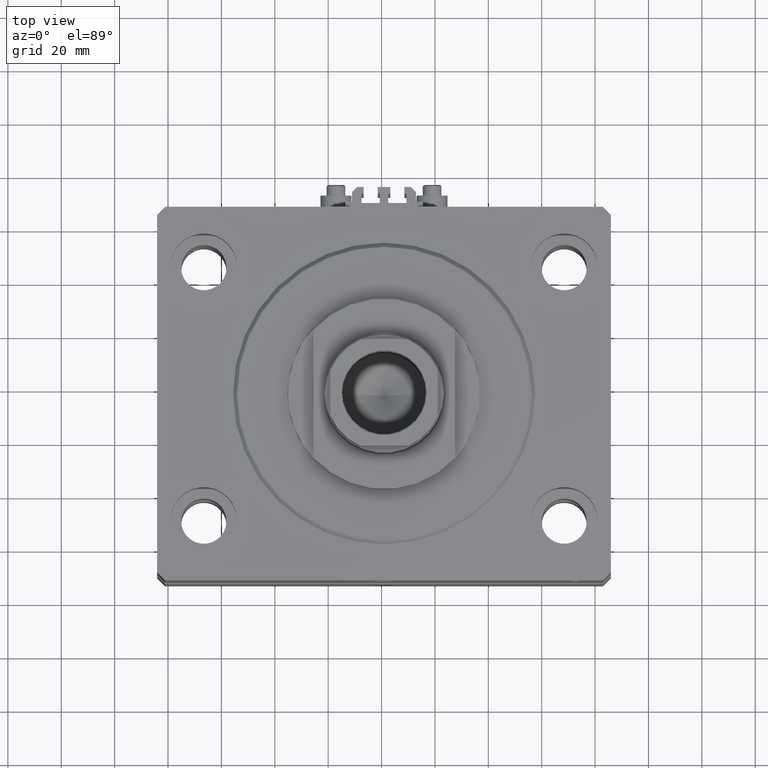
[diagram: clean part render]
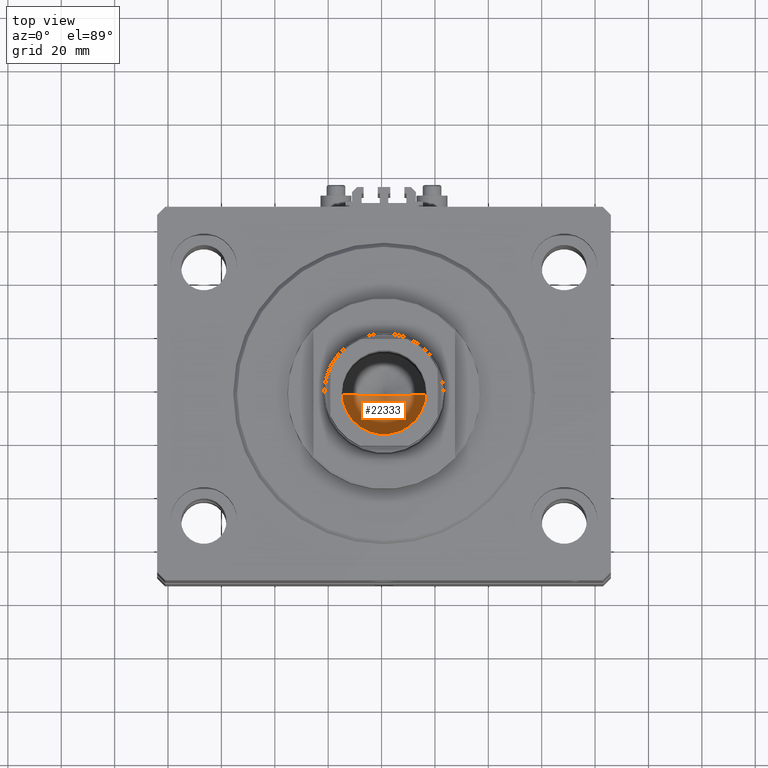
[diagram: same view with one face highlighted and labeled with its STEP entity id]
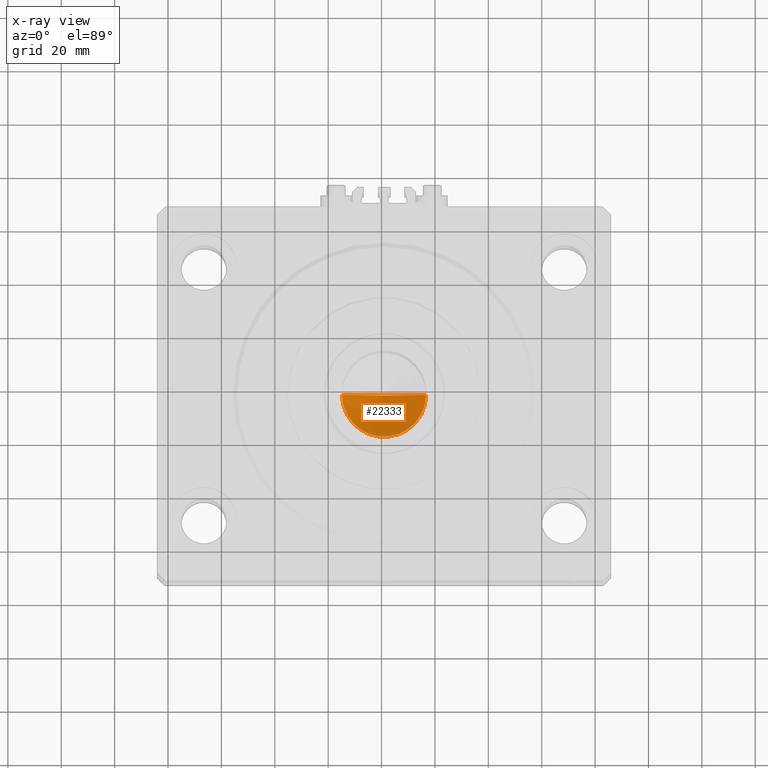
[diagram: x-ray of the same camera — body ghosted, the highlighted face saturated]
A machine part, top view. The second image highlights one B-rep face of the part: STEP entity #22333.
The next image is the same camera in x-ray: the body ghosted, the highlighted face saturated — about 8% of this face is hidden behind the body in this view.
In plain terms, the highlighted conical surface has half-angle 59 deg.
Its self-contained STEP definition (entity closure, byte-faithful):
#2558 = DIRECTION ( 'NONE',  ( -0.000000000000000000, -0.000000000000000000, 1.000000000000000000 ) ) ;
#3856 = DIRECTION ( 'NONE',  ( -0.8571673007021118895, 1.049727191138618079E-16, 0.5150380749100549327 ) ) ;
#3871 = EDGE_LOOP ( 'NONE', ( #7846, #6581, #46668 ) ) ;
#6218 = CONICAL_SURFACE ( 'NONE', #36731, 15.74999999999998934, 1.029744258676653645 ) ;
#6227 = FACE_OUTER_BOUND ( 'NONE', #3871, .T. ) ;
#6581 = ORIENTED_EDGE ( 'NONE', *, *, #48388, .T. ) ;
#6760 = VECTOR ( 'NONE', #3856, 1000.000000000000000 ) ;
#7846 = ORIENTED_EDGE ( 'NONE', *, *, #15342, .F. ) ;
#9653 = EDGE_CURVE ( 'NONE', #30307, #35238, #28606, .T. ) ;
#11919 = CARTESIAN_POINT ( 'NONE',  ( -15.74999999999998934, 1.928818708657080161E-15, 71.00000000000001421 ) ) ;
#15342 = EDGE_CURVE ( 'NONE', #45199, #35238, #39161, .T. ) ;
#18560 = LINE ( 'NONE', #37408, #6760 ) ;
#19825 = DIRECTION ( 'NONE',  ( 0.8571673007021118895, 0.000000000000000000, 0.5150380749100549327 ) ) ;
#20448 = CARTESIAN_POINT ( 'NONE',  ( 0.000000000000000000, 0.000000000000000000, 71.00000000000001421 ) ) ;
#22333 = ADVANCED_FACE ( 'NONE', ( #6227 ), #6218, .F. ) ;
#22414 = VECTOR ( 'NONE', #19825, 1000.000000000000000 ) ;
#25715 = DIRECTION ( 'NONE',  ( -0.000000000000000000, -0.000000000000000000, 1.000000000000000000 ) ) ;
#28295 = CARTESIAN_POINT ( 'NONE',  ( 15.74999999999998934, 0.000000000000000000, 71.00000000000001421 ) ) ;
#28606 = CIRCLE ( 'NONE', #37204, 15.74999999999998934 ) ;
#29249 = CARTESIAN_POINT ( 'NONE',  ( -1.480675244360640996E-14, 0.000000000000000000, 61.53644525031592849 ) ) ;
#30307 = VERTEX_POINT ( 'NONE', #11919 ) ;
#31220 = DIRECTION ( 'NONE',  ( 1.000000000000000000, 0.000000000000000000, 0.000000000000000000 ) ) ;
#34511 = CARTESIAN_POINT ( 'NONE',  ( 15.74999999999998934, 0.000000000000000000, 71.00000000000001421 ) ) ;
#35238 = VERTEX_POINT ( 'NONE', #28295 ) ;
#36731 = AXIS2_PLACEMENT_3D ( 'NONE', #20448, #2558, #31220 ) ;
#36977 = CARTESIAN_POINT ( 'NONE',  ( 0.000000000000000000, 0.000000000000000000, 71.00000000000001421 ) ) ;
#37204 = AXIS2_PLACEMENT_3D ( 'NONE', #36977, #25715, #37696 ) ;
#37408 = CARTESIAN_POINT ( 'NONE',  ( -15.74999999999998934, 1.928818708657080161E-15, 71.00000000000001421 ) ) ;
#37696 = DIRECTION ( 'NONE',  ( 1.000000000000000000, 0.000000000000000000, 0.000000000000000000 ) ) ;
#39161 = LINE ( 'NONE', #34511, #22414 ) ;
#45199 = VERTEX_POINT ( 'NONE', #29249 ) ;
#46668 = ORIENTED_EDGE ( 'NONE', *, *, #9653, .T. ) ;
#48388 = EDGE_CURVE ( 'NONE', #45199, #30307, #18560, .T. ) ;